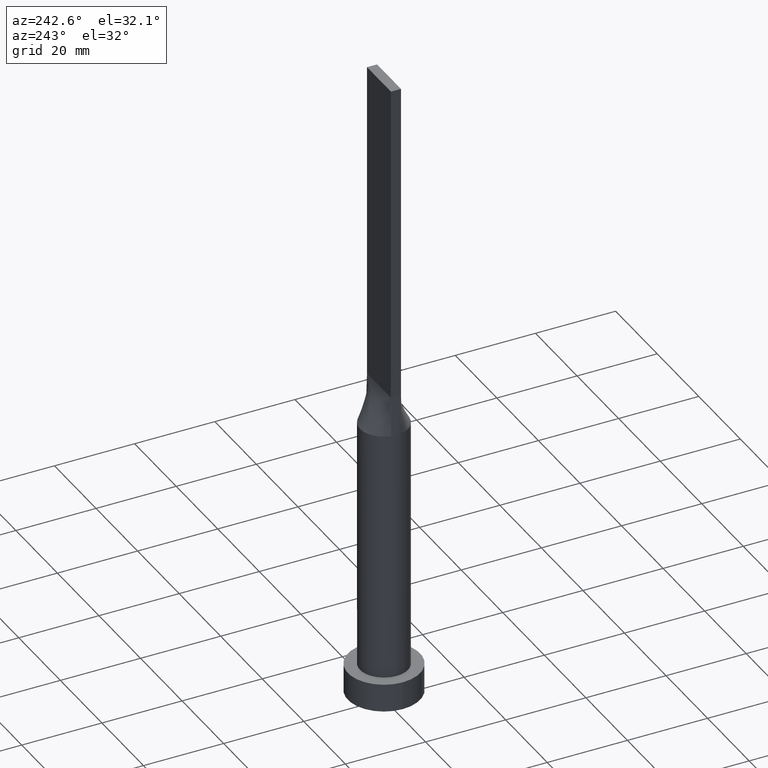
[diagram: clean part render]
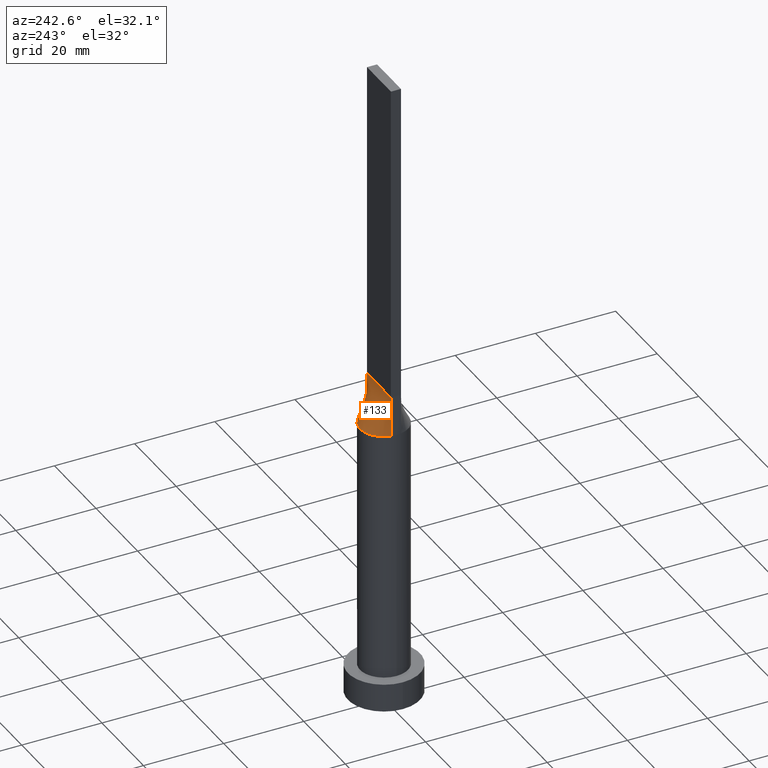
[diagram: same view with one face highlighted and labeled with its STEP entity id]
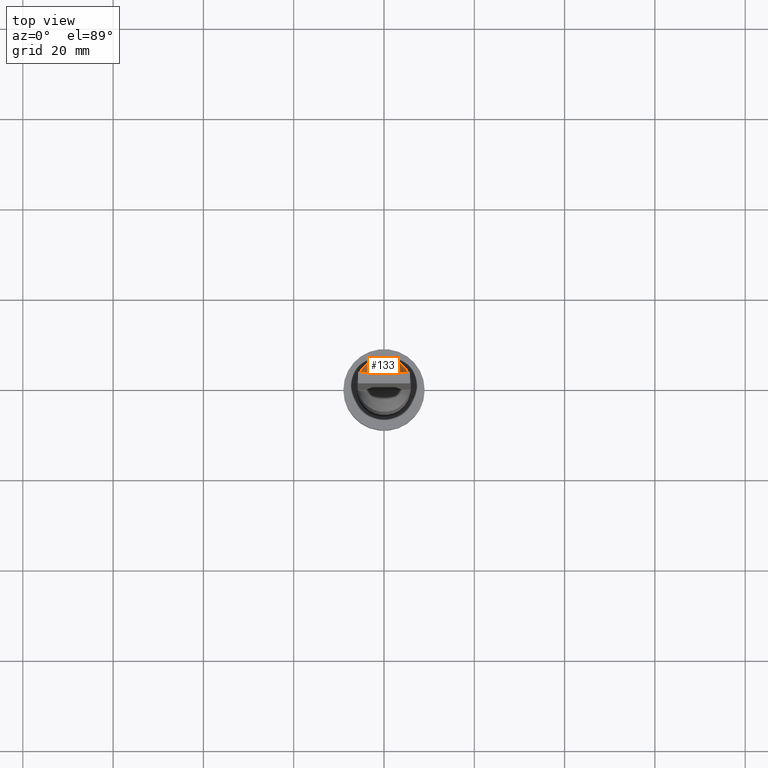
[diagram: same view with one face highlighted and labeled with its STEP entity id]
A machine part, auxiliary view. The second image highlights one B-rep face of the part: STEP entity #133.
A second angle (top view) of the same face is appended — the face is thin or edge-on in the first view.
In plain terms, the highlighted face is a freeform B-spline surface patch.
Its self-contained STEP definition (entity closure, byte-faithful):
#1 = CARTESIAN_POINT ( 'NONE',  ( -0.4029827085191223790, 5.999999999999998224, 70.00000000000000000 ) ) ;
#4 = CARTESIAN_POINT ( 'NONE',  ( -4.659826596530312948, 3.842755878357679844, 69.99999999999998579 ) ) ;
#6 = CARTESIAN_POINT ( 'NONE',  ( -5.038190104264874236, 3.311355329404293446, 70.00000000000001421 ) ) ;
#24 = VERTEX_POINT ( 'NONE', #566 ) ;
#26 = CARTESIAN_POINT ( 'NONE',  ( -4.659826596530312948, 3.842755878357679844, 69.99999999999998579 ) ) ;
#33 = CARTESIAN_POINT ( 'NONE',  ( 5.863058183536806744, 1.274577865986262104, 70.00000000000000000 ) ) ;
#34 = CARTESIAN_POINT ( 'NONE',  ( -3.833333333333333481, 1.250000000000000222, 79.99999999999998579 ) ) ;
#37 = CARTESIAN_POINT ( 'NONE',  ( -5.750000000000000000, 1.250000000000000222, 80.00000000000000000 ) ) ;
#40 = CARTESIAN_POINT ( 'NONE',  ( 4.791666666666666075, 1.250000000000000222, 79.99999999999998579 ) ) ;
#41 = CARTESIAN_POINT ( 'NONE',  ( -5.586898165904732316, 2.266054396544148197, 70.00000000000001421 ) ) ;
#49 = CARTESIAN_POINT ( 'NONE',  ( 1.916666666666664076, 1.250000000000000222, 79.99999999999998579 ) ) ;
#56 = CARTESIAN_POINT ( 'NONE',  ( 1.587717880441007479, 5.799853445840305710, 69.99999999999998579 ) ) ;
#58 = CARTESIAN_POINT ( 'NONE',  ( -5.863058287509749888, 1.274577880478287017, 70.00000000000000000 ) ) ;
#61 = B_SPLINE_SURFACE_WITH_KNOTS ( 'NONE', 3, 1, ( 
 ( #33, #169 ),
 ( #545, #395 ),
 ( #221, #40 ),
 ( #585, #129 ),
 ( #349, #170 ),
 ( #311, #88 ),
 ( #268, #49 ),
 ( #406, #398 ),
 ( #597, #320 ),
 ( #592, #180 ),
 ( #139, #506 ),
 ( #176, #75 ),
 ( #354, #307 ),
 ( #70, #440 ),
 ( #161, #530 ),
 ( #113, #296 ),
 ( #491, #479 ),
 ( #26, #213 ),
 ( #386, #34 ),
 ( #41, #579 ),
 ( #166, #345 ),
 ( #301, #37 ) ),
 .UNSPECIFIED., .F., .F., .F.,
 ( 4, 2, 2, 2, 2, 2, 2, 2, 2, 2, 4 ),
 ( 2, 2 ),
 ( 0.000000000000000000, 0.1249999999999999722, 0.2499999999999999445, 0.3749999999999999445, 0.4374999999999999445, 0.4999999999999998890, 0.5624999999999998890, 0.6249999999999998890, 0.7499999999999997780, 0.8749999999999998890, 1.000000000000000000 ),
 ( 0.000000000000000000, 1.000000000000000000 ),
 .UNSPECIFIED. ) ;
#70 = CARTESIAN_POINT ( 'NONE',  ( -1.587717880441007035, 5.799853445840308375, 69.99999999999998579 ) ) ;
#75 = CARTESIAN_POINT ( 'NONE',  ( -0.2395833333333362847, 1.250000000000000222, 80.00000000000000000 ) ) ;
#77 = CARTESIAN_POINT ( 'NONE',  ( 5.806529091768402928, 1.262288932993131496, 75.00000000000001421 ) ) ;
#82 = ORIENTED_EDGE ( 'NONE', *, *, #143, .F. ) ;
#83 = DIRECTION ( 'NONE',  ( -0.01130506171853812650, -0.002457622112725661723, 0.9999330755971076456 ) ) ;
#88 = CARTESIAN_POINT ( 'NONE',  ( 2.395833333333330817, 1.250000000000000222, 79.99999999999998579 ) ) ;
#102 = CARTESIAN_POINT ( 'NONE',  ( 5.586898165904734093, 2.266054396544147309, 70.00000000000000000 ) ) ;
#113 = CARTESIAN_POINT ( 'NONE',  ( -3.037647739454304663, 5.231880992812857123, 70.00000000000002842 ) ) ;
#127 = CARTESIAN_POINT ( 'NONE',  ( 5.863058183536806744, 1.274577865986262326, 70.00000000000000000 ) ) ;
#129 = CARTESIAN_POINT ( 'NONE',  ( 3.833333333333331705, 1.250000000000000222, 79.99999999999998579 ) ) ;
#133 = ADVANCED_FACE ( 'NONE', ( #373 ), #61, .T. ) ;
#139 = CARTESIAN_POINT ( 'NONE',  ( 0.4029827085191226566, 5.999999999999999112, 70.00000000000000000 ) ) ;
#143 = EDGE_CURVE ( 'NONE', #153, #258, #540, .T. ) ;
#146 = CARTESIAN_POINT ( 'NONE',  ( -5.586898165904732316, 2.266054396544148197, 70.00000000000001421 ) ) ;
#149 = CARTESIAN_POINT ( 'NONE',  ( 3.037647739454305995, 5.231880992812856235, 70.00000000000001421 ) ) ;
#153 = VERTEX_POINT ( 'NONE', #127 ) ;
#161 = CARTESIAN_POINT ( 'NONE',  ( -1.966519853258818173, 5.681792876789067748, 70.00000000000002842 ) ) ;
#166 = CARTESIAN_POINT ( 'NONE',  ( -5.759267569818392829, 1.752014689090956256, 70.00000000000000000 ) ) ;
#167 = CARTESIAN_POINT ( 'NONE',  ( -5.750000000000000000, 1.250000000000000222, 80.00000000000000000 ) ) ;
#169 = CARTESIAN_POINT ( 'NONE',  ( 5.750000000000000000, 1.250000000000000222, 80.00000000000000000 ) ) ;
#170 = CARTESIAN_POINT ( 'NONE',  ( 3.354166666666665186, 1.250000000000000222, 79.99999999999998579 ) ) ;
#172 = VECTOR ( 'NONE', #368, 1000.000000000000114 ) ;
#176 = CARTESIAN_POINT ( 'NONE',  ( -0.4029827085191223790, 5.999999999999998224, 70.00000000000000000 ) ) ;
#180 = CARTESIAN_POINT ( 'NONE',  ( 0.4791666666666637986, 1.250000000000000222, 79.99999999999998579 ) ) ;
#182 = EDGE_LOOP ( 'NONE', ( #455, #365, #264, #82 ) ) ;
#191 = CARTESIAN_POINT ( 'NONE',  ( -5.863058287509749888, 1.274577880478287017, 70.00000000000000000 ) ) ;
#197 = VECTOR ( 'NONE', #387, 1000.000000000000000 ) ;
#213 = CARTESIAN_POINT ( 'NONE',  ( -3.354166666666666963, 1.250000000000000222, 79.99999999999998579 ) ) ;
#221 = CARTESIAN_POINT ( 'NONE',  ( 5.586898165904734093, 2.266054396544147309, 70.00000000000000000 ) ) ;
#235 = CARTESIAN_POINT ( 'NONE',  ( -5.806529091768402928, 1.262288932993132606, 75.00000000000001421 ) ) ;
#240 = CARTESIAN_POINT ( 'NONE',  ( 1.966519853258819062, 5.681792876789066860, 70.00000000000000000 ) ) ;
#258 = VERTEX_POINT ( 'NONE', #543 ) ;
#264 = ORIENTED_EDGE ( 'NONE', *, *, #558, .F. ) ;
#268 = CARTESIAN_POINT ( 'NONE',  ( 3.037647739454305995, 5.231880992812856235, 70.00000000000001421 ) ) ;
#279 = CARTESIAN_POINT ( 'NONE',  ( 4.659826596530313836, 3.842755878357678068, 70.00000000000001421 ) ) ;
#281 = LINE ( 'NONE', #235, #172 ) ;
#282 = VECTOR ( 'NONE', #83, 1000.000000000000114 ) ;
#284 = CARTESIAN_POINT ( 'NONE',  ( -0.8058840496048931268, 5.959001506938069070, 70.00000000000000000 ) ) ;
#296 = CARTESIAN_POINT ( 'NONE',  ( -1.916666666666668073, 1.250000000000000222, 80.00000000000000000 ) ) ;
#301 = CARTESIAN_POINT ( 'NONE',  ( -5.863058183536805856, 1.274577865986265435, 70.00000000000000000 ) ) ;
#307 = CARTESIAN_POINT ( 'NONE',  ( -0.4791666666666691832, 1.250000000000000222, 80.00000000000000000 ) ) ;
#311 = CARTESIAN_POINT ( 'NONE',  ( 3.660567483996337579, 4.804269179125218336, 70.00000000000000000 ) ) ;
#320 = CARTESIAN_POINT ( 'NONE',  ( 0.9583333333333305948, 1.250000000000000222, 79.99999999999998579 ) ) ;
#321 = CARTESIAN_POINT ( 'NONE',  ( 5.759267569818392829, 1.752014689090955590, 70.00000000000001421 ) ) ;
#326 = CARTESIAN_POINT ( 'NONE',  ( 5.863058183536806744, 1.274577865986262326, 70.00000000000000000 ) ) ;
#330 = CARTESIAN_POINT ( 'NONE',  ( 3.660567483996337579, 4.804269179125218336, 70.00000000000000000 ) ) ;
#345 = CARTESIAN_POINT ( 'NONE',  ( -5.270833333333333925, 1.250000000000000222, 79.99999999999998579 ) ) ;
#349 = CARTESIAN_POINT ( 'NONE',  ( 4.659826596530313836, 3.842755878357678068, 70.00000000000001421 ) ) ;
#352 = EDGE_CURVE ( 'NONE', #153, #413, #403, .T. ) ;
#354 = CARTESIAN_POINT ( 'NONE',  ( -0.8058840496048931268, 5.959001506938069070, 70.00000000000000000 ) ) ;
#363 = CARTESIAN_POINT ( 'NONE',  ( -1.587717880441007035, 5.799853445840308375, 69.99999999999998579 ) ) ;
#365 = ORIENTED_EDGE ( 'NONE', *, *, #457, .T. ) ;
#368 = DIRECTION ( 'NONE',  ( 0.01130506171853803803, -0.002457622112725964866, 0.9999330755971076456 ) ) ;
#373 = FACE_OUTER_BOUND ( 'NONE', #182, .T. ) ;
#386 = CARTESIAN_POINT ( 'NONE',  ( -5.038190104264874236, 3.311355329404293446, 70.00000000000001421 ) ) ;
#387 = DIRECTION ( 'NONE',  ( -1.000000000000000000, -0.000000000000000000, -0.000000000000000000 ) ) ;
#395 = CARTESIAN_POINT ( 'NONE',  ( 5.270833333333333037, 1.250000000000000222, 79.99999999999998579 ) ) ;
#398 = CARTESIAN_POINT ( 'NONE',  ( 1.197916666666664076, 1.250000000000000222, 79.99999999999998579 ) ) ;
#403 = B_SPLINE_CURVE_WITH_KNOTS ( 'NONE', 3,
 ( #326, #321, #102, #421, #279, #330, #149, #240, #56, #516, #520, #1, #284, #363, #418, #507, #416, #4, #6, #146, #453, #191 ),
 .UNSPECIFIED., .F., .F.,
 ( 4, 2, 2, 2, 2, 2, 2, 2, 2, 2, 4 ),
 ( 0.000000000000000000, 0.1249999999999999722, 0.2499999999999999445, 0.3749999999999999445, 0.4374999999999999445, 0.4999999999999998890, 0.5624999999999998890, 0.6249999999999998890, 0.7499999999999997780, 0.8749999999999998890, 1.000000000000000000 ),
 .UNSPECIFIED. ) ;
#406 = CARTESIAN_POINT ( 'NONE',  ( 1.966519853258819062, 5.681792876789066860, 70.00000000000000000 ) ) ;
#413 = VERTEX_POINT ( 'NONE', #58 ) ;
#416 = CARTESIAN_POINT ( 'NONE',  ( -3.660567483996338023, 4.804269179125219225, 70.00000000000001421 ) ) ;
#418 = CARTESIAN_POINT ( 'NONE',  ( -1.966519853258818173, 5.681792876789067748, 70.00000000000002842 ) ) ;
#421 = CARTESIAN_POINT ( 'NONE',  ( 5.038190104264874236, 3.311355329404293002, 70.00000000000004263 ) ) ;
#433 = LINE ( 'NONE', #167, #197 ) ;
#440 = CARTESIAN_POINT ( 'NONE',  ( -0.9583333333333353687, 1.250000000000000222, 80.00000000000000000 ) ) ;
#453 = CARTESIAN_POINT ( 'NONE',  ( -5.759267569818392829, 1.752014689090956256, 70.00000000000000000 ) ) ;
#455 = ORIENTED_EDGE ( 'NONE', *, *, #352, .T. ) ;
#457 = EDGE_CURVE ( 'NONE', #413, #24, #281, .T. ) ;
#479 = CARTESIAN_POINT ( 'NONE',  ( -2.395833333333333925, 1.250000000000000222, 79.99999999999998579 ) ) ;
#491 = CARTESIAN_POINT ( 'NONE',  ( -3.660567483996338023, 4.804269179125219225, 70.00000000000001421 ) ) ;
#506 = CARTESIAN_POINT ( 'NONE',  ( 0.2395833333333302617, 1.250000000000000222, 80.00000000000000000 ) ) ;
#507 = CARTESIAN_POINT ( 'NONE',  ( -3.037647739454304663, 5.231880992812857123, 70.00000000000002842 ) ) ;
#516 = CARTESIAN_POINT ( 'NONE',  ( 0.8058840496048939039, 5.959001506938069070, 70.00000000000001421 ) ) ;
#520 = CARTESIAN_POINT ( 'NONE',  ( 0.4029827085191226566, 5.999999999999999112, 70.00000000000000000 ) ) ;
#530 = CARTESIAN_POINT ( 'NONE',  ( -1.197916666666668739, 1.250000000000000222, 80.00000000000000000 ) ) ;
#540 = LINE ( 'NONE', #77, #282 ) ;
#543 = CARTESIAN_POINT ( 'NONE',  ( 5.750000000000000000, 1.250000000000000222, 80.00000000000000000 ) ) ;
#545 = CARTESIAN_POINT ( 'NONE',  ( 5.759267569818392829, 1.752014689090955590, 70.00000000000001421 ) ) ;
#558 = EDGE_CURVE ( 'NONE', #258, #24, #433, .T. ) ;
#566 = CARTESIAN_POINT ( 'NONE',  ( -5.750000000000000000, 1.250000000000000222, 80.00000000000000000 ) ) ;
#579 = CARTESIAN_POINT ( 'NONE',  ( -4.791666666666666963, 1.250000000000000222, 79.99999999999998579 ) ) ;
#585 = CARTESIAN_POINT ( 'NONE',  ( 5.038190104264874236, 3.311355329404293002, 70.00000000000004263 ) ) ;
#592 = CARTESIAN_POINT ( 'NONE',  ( 0.8058840496048939039, 5.959001506938069070, 70.00000000000001421 ) ) ;
#597 = CARTESIAN_POINT ( 'NONE',  ( 1.587717880441007479, 5.799853445840305710, 69.99999999999998579 ) ) ;